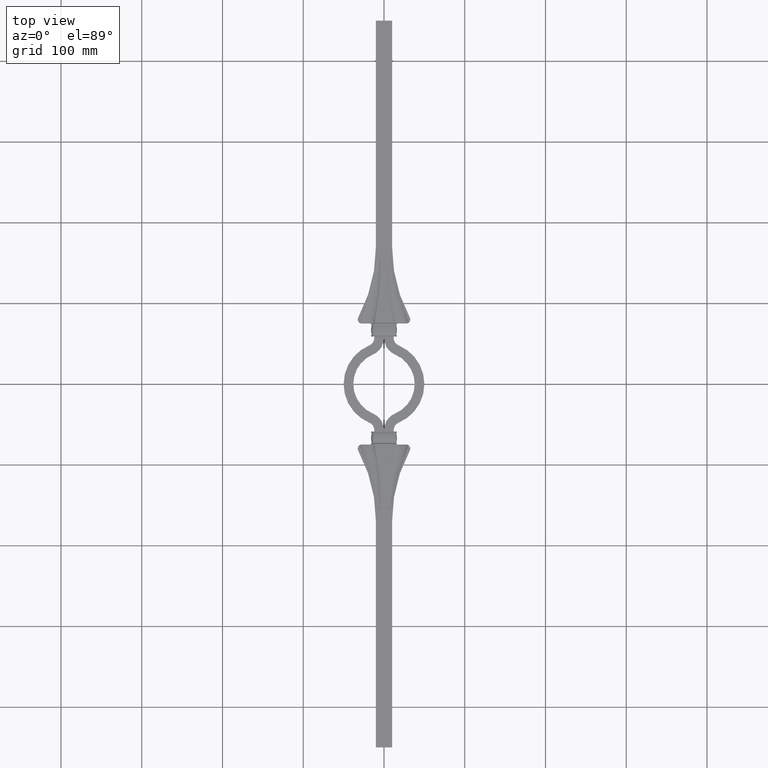
[diagram: clean part render]
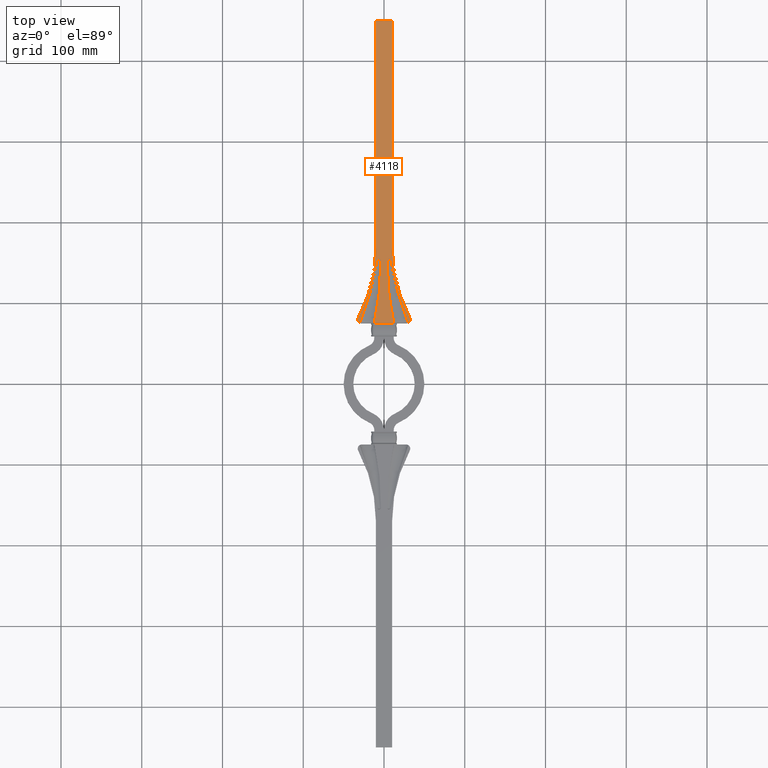
[diagram: same view with one face highlighted and labeled with its STEP entity id]
A machine part, top view. The second image highlights one B-rep face of the part: STEP entity #4118.
In plain terms, the highlighted planar face has unit normal (-0, 0, -1).
Its self-contained STEP definition (entity closure, byte-faithful):
#44 = B_SPLINE_CURVE_WITH_KNOTS ( 'NONE', 3,
 ( #5200, #12776, #3306, #7011, #12444, #16330, #6766, #1505, #6925, #10725, #8742, #21994, #21911, #14662, #20017, #1340, #10642, #3386, #8987, #5121, #18285, #20101, #20178, #22077, #10561, #12689, #1173, #16404, #8915, #8830, #1423, #6850, #23805, #4959, #10891, #10805, #16564 ),
 .UNSPECIFIED., .F., .F.,
 ( 4, 1, 1, 2, 2, 1, 1, 2, 2, 1, 1, 2, 2, 1, 2, 2, 2, 2, 1, 1, 2, 2, 4 ),
 ( 0.000000000000000000, 0.1250000000000149880, 0.1562500000000190681, 0.1640625000000205669, 0.1718750000000220657, 0.1875000000000266731, 0.2187500000000359157, 0.2343750000000405509, 0.2500000000000451306, 0.3125000000000657252, 0.3437500000000754397, 0.3593750000000764944, 0.3750000000000776046, 0.4375000000000899836, 0.4687500000000962008, 0.5000000000001023626, 0.5625000000001127987, 0.6250000000001231237, 0.6875000000001335598, 0.7187500000001230127, 0.7343750000001177947, 0.7500000000001125766, 1.000000000000000000 ),
 .UNSPECIFIED. ) ;
#60 = AXIS2_PLACEMENT_3D ( 'NONE', #14789, #22440, #11094 ) ;
#222 = CARTESIAN_POINT ( 'NONE',  ( 6.704073158307038760, 155.0000000000000000, 5.000000000000000000 ) ) ;
#261 = B_SPLINE_CURVE_WITH_KNOTS ( 'NONE', 3,
 ( #12337, #16385, #14391, #2962, #984, #3201, #18019, #10615, #21726, #16058, #2876, #17849, #16307, #8479 ),
 .UNSPECIFIED., .F., .F.,
 ( 4, 2, 2, 2, 2, 2, 4 ),
 ( 0.000000000000000000, 0.009934312361116222692, 0.01986862472223244538, 0.03973724944446484914, 0.04967156180558107009, 0.05960587416669729105, 0.07947449888892964276 ),
 .UNSPECIFIED. ) ;
#278 = VERTEX_POINT ( 'NONE', #22323 ) ;
#352 = VERTEX_POINT ( 'NONE', #19267 ) ;
#451 = CARTESIAN_POINT ( 'NONE',  ( -4.954640374060897301, 154.9823200777343288, 5.000000000000000000 ) ) ;
#544 = EDGE_CURVE ( 'NONE', #17529, #352, #261, .T. ) ;
#704 = CARTESIAN_POINT ( 'NONE',  ( -3.950210554127115081, 154.4160855845805997, 5.000000000000000000 ) ) ;
#722 = DIRECTION ( 'NONE',  ( -1.000000000000000000, 0.000000000000000000, 0.000000000000000000 ) ) ;
#859 = CARTESIAN_POINT ( 'NONE',  ( 8.369848107284010297, 153.9566044168722101, 5.000000000001072920 ) ) ;
#984 = CARTESIAN_POINT ( 'NONE',  ( 8.866194271365552382, 91.25759851527263322, 5.000000000000000000 ) ) ;
#1091 = CARTESIAN_POINT ( 'NONE',  ( -7.489098946803931511, 154.9483752531168079, 4.999999999999999112 ) ) ;
#1108 = EDGE_CURVE ( 'NONE', #3336, #16348, #13888, .T. ) ;
#1173 = CARTESIAN_POINT ( 'NONE',  ( 7.945722487624616193, 154.7506032434060614, 5.000000000000000000 ) ) ;
#1190 = CARTESIAN_POINT ( 'NONE',  ( 29.90578352800346451, 75.61682699219078074, 5.000000000000000000 ) ) ;
#1268 = VECTOR ( 'NONE', #8142, 1000.000000000000000 ) ;
#1340 = CARTESIAN_POINT ( 'NONE',  ( 7.457000456572635549, 154.9543196795644349, 4.999999999999999112 ) ) ;
#1423 = CARTESIAN_POINT ( 'NONE',  ( 8.137524626313465959, 154.5441998252148608, 4.999999999999999112 ) ) ;
#1444 = VECTOR ( 'NONE', #4790, 1000.000000000000000 ) ;
#1489 = CARTESIAN_POINT ( 'NONE',  ( 4.855366039987758953, 154.9724817919294821, 5.000000000000000000 ) ) ;
#1505 = CARTESIAN_POINT ( 'NONE',  ( 7.097308017255719470, 154.9925326577647411, 5.000000000000000888 ) ) ;
#1573 = CARTESIAN_POINT ( 'NONE',  ( 4.933276762438108420, 154.9804403963294988, 4.999999999999999112 ) ) ;
#1654 = CARTESIAN_POINT ( 'NONE',  ( 3.849387639408194062, 153.9453619701153286, 5.000000000000000000 ) ) ;
#1747 = CARTESIAN_POINT ( 'NONE',  ( -7.158215138077637540, 154.9894308716734486, 5.000000000000000000 ) ) ;
#1772 = CARTESIAN_POINT ( 'NONE',  ( -10.65418433901768758, 81.48515730548123770, 4.999999999999999112 ) ) ;
#1881 = CARTESIAN_POINT ( 'NONE',  ( 10.00000000000003730, 169.9999999999999716, 5.000000000000000000 ) ) ;
#1913 = EDGE_CURVE ( 'NONE', #4162, #9685, #8938, .T. ) ;
#1929 = CARTESIAN_POINT ( 'NONE',  ( -4.647065514988586443, 127.4185468190704711, 4.999999999999998224 ) ) ;
#1982 = CARTESIAN_POINT ( 'NONE',  ( -16.17235635153362949, 117.4835181931385932, 5.000000000000000000 ) ) ;
#2066 = CARTESIAN_POINT ( 'NONE',  ( -25.16593234182545302, 88.32623465581102096, 5.000000000000001776 ) ) ;
#2308 = CIRCLE ( 'NONE', #19610, 186.2500000000003126 ) ;
#2313 = EDGE_CURVE ( 'NONE', #5469, #19061, #3419, .T. ) ;
#2454 = CARTESIAN_POINT ( 'NONE',  ( -4.817166454813649246, 154.9682276090290998, 4.999999999999999112 ) ) ;
#2525 = ORIENTED_EDGE ( 'NONE', *, *, #5213, .F. ) ;
#2722 = CARTESIAN_POINT ( 'NONE',  ( 9.999999999999998224, 450.0000000000000000, 5.000000000000000000 ) ) ;
#2758 = CARTESIAN_POINT ( 'NONE',  ( 20.87496705193597180, 101.1957691935674291, 5.000000000000000000 ) ) ;
#2836 = CARTESIAN_POINT ( 'NONE',  ( 28.66460864057637181, 78.77300451352211041, 5.000000000000000888 ) ) ;
#2876 = CARTESIAN_POINT ( 'NONE',  ( 4.474168269533989495, 130.7263189135368293, 5.000000000000000888 ) ) ;
#2962 = CARTESIAN_POINT ( 'NONE',  ( 9.435256655440054985, 87.99521046313290640, 4.999999999999998224 ) ) ;
#2983 = CARTESIAN_POINT ( 'NONE',  ( -8.369846276095589843, 153.9566048082628242, 5.000000000000015987 ) ) ;
#3201 = CARTESIAN_POINT ( 'NONE',  ( 7.282036358220088879, 101.0645038266207365, 4.999999999999999112 ) ) ;
#3255 = VERTEX_POINT ( 'NONE', #13015 ) ;
#3288 = CARTESIAN_POINT ( 'NONE',  ( 4.016879431814632362, 154.5463229098289162, 5.000000000000000000 ) ) ;
#3306 = CARTESIAN_POINT ( 'NONE',  ( 6.938084917852323841, 154.9985156875119685, 5.000000000000000888 ) ) ;
#3336 = VERTEX_POINT ( 'NONE', #13624 ) ;
#3366 = CARTESIAN_POINT ( 'NONE',  ( 4.615485542775187966, 154.9305361709761542, 5.000000000000000000 ) ) ;
#3386 = CARTESIAN_POINT ( 'NONE',  ( 7.509167489440863541, 154.9436147647252824, 5.000000000000001776 ) ) ;
#3419 = B_SPLINE_CURVE_WITH_KNOTS ( 'NONE', 3,
 ( #20819, #13084, #22704, #2066, #7569, #9299, #13162, #1982, #11357, #7731, #20732, #18689, #7412, #11439 ),
 .UNSPECIFIED., .F., .F.,
 ( 4, 2, 2, 2, 2, 2, 4 ),
 ( 0.0006630706660943519633, 0.01083704948622537211, 0.02101102830635639268, 0.04135898594661847200, 0.05153296476674949778, 0.06170694358688046804, 0.08205490122714240164 ),
 .UNSPECIFIED. ) ;
#3451 = CARTESIAN_POINT ( 'NONE',  ( 5.086463813540904155, 154.9938781205850660, 4.999999999999999112 ) ) ;
#3524 = CARTESIAN_POINT ( 'NONE',  ( 4.338980454192877367, 154.8292424760706467, 5.000000000000000000 ) ) ;
#3611 = LINE ( 'NONE', #7914, #1268 ) ;
#3616 = DIRECTION ( 'NONE',  ( 0.000000000000000000, 0.000000000000000000, 1.000000000000000000 ) ) ;
#3799 = CARTESIAN_POINT ( 'NONE',  ( -5.372424261954931168, 117.5107942955538931, 5.000000000000001776 ) ) ;
#4118 = ADVANCED_FACE ( 'NONE', ( #20307 ), #17439, .F. ) ;
#4162 = VERTEX_POINT ( 'NONE', #5876 ) ;
#4189 = CARTESIAN_POINT ( 'NONE',  ( -27.50000000000000000, 80.00000000000000000, 5.000000000000000000 ) ) ;
#4345 = CARTESIAN_POINT ( 'NONE',  ( -4.736075384499796925, 154.9552602184182035, 5.000000000000000000 ) ) ;
#4424 = CARTESIAN_POINT ( 'NONE',  ( -4.670328043497851134, 154.9426249235760054, 5.000000000000000888 ) ) ;
#4484 = CARTESIAN_POINT ( 'NONE',  ( -9.999999999999998224, 450.0000000000000000, 5.000000000000000000 ) ) ;
#4561 = EDGE_CURVE ( 'NONE', #8319, #20470, #6430, .T. ) ;
#4790 = DIRECTION ( 'NONE',  ( -1.000000000000000000, 1.224646799147353207E-16, 0.000000000000000000 ) ) ;
#4791 = CARTESIAN_POINT ( 'NONE',  ( -8.312822230250709765, 154.1940794741252034, 4.999999999999999112 ) ) ;
#4795 = AXIS2_PLACEMENT_3D ( 'NONE', #4189, #19247, #6142 ) ;
#4957 = CARTESIAN_POINT ( 'NONE',  ( -8.219940837845440385, 154.4060487012313274, 4.999999999999999112 ) ) ;
#4959 = CARTESIAN_POINT ( 'NONE',  ( 8.177099160317723658, 154.4823493684898494, 5.000000000000000000 ) ) ;
#5061 = VERTEX_POINT ( 'NONE', #2722 ) ;
#5117 = CARTESIAN_POINT ( 'NONE',  ( -8.204754837962235925, 154.4341571497420773, 5.000000000000000000 ) ) ;
#5121 = CARTESIAN_POINT ( 'NONE',  ( 7.577369721492475563, 154.9278491904554187, 4.999999999999999112 ) ) ;
#5199 = CARTESIAN_POINT ( 'NONE',  ( -6.704089015590581013, 155.0000000000000000, 5.000000000000000000 ) ) ;
#5200 = CARTESIAN_POINT ( 'NONE',  ( 6.704073158307038760, 155.0000000000000000, 5.000000000000000000 ) ) ;
#5213 = EDGE_CURVE ( 'NONE', #17529, #7072, #14776, .T. ) ;
#5224 = CARTESIAN_POINT ( 'NONE',  ( -6.704089015590581013, 155.0000000000000000, 5.000000000000000000 ) ) ;
#5288 = VERTEX_POINT ( 'NONE', #18596 ) ;
#5340 = CARTESIAN_POINT ( 'NONE',  ( 3.960061134427694807, 154.4353646470972592, 4.999999999999999112 ) ) ;
#5353 = CARTESIAN_POINT ( 'NONE',  ( -6.938287923078263475, 154.9985145645733269, 5.000000000000000000 ) ) ;
#5416 = CARTESIAN_POINT ( 'NONE',  ( -31.91176470588235503, 82.35294117647059409, 5.000000000000000000 ) ) ;
#5423 = CARTESIAN_POINT ( 'NONE',  ( 4.939930174933761187, 154.9810436870728836, 5.000000000000000888 ) ) ;
#5469 = VERTEX_POINT ( 'NONE', #11391 ) ;
#5514 = CARTESIAN_POINT ( 'NONE',  ( -7.072893912736047284, 154.9936636895080255, 5.000000000000000000 ) ) ;
#5600 = LINE ( 'NONE', #15522, #20042 ) ;
#5616 = CARTESIAN_POINT ( 'NONE',  ( -3.850103109401592505, 153.8959823035247325, 5.000000000007732481 ) ) ;
#5876 = CARTESIAN_POINT ( 'NONE',  ( -3.850103109401592505, 153.8959823035247325, 5.000000000007732481 ) ) ;
#6142 = DIRECTION ( 'NONE',  ( 1.000000000000000000, 0.000000000000000000, 0.000000000000000000 ) ) ;
#6146 = EDGE_CURVE ( 'NONE', #278, #4162, #12115, .T. ) ;
#6224 = CARTESIAN_POINT ( 'NONE',  ( -5.524884413910358560, 155.0000000000000000, 5.000000000000000000 ) ) ;
#6225 = ORIENTED_EDGE ( 'NONE', *, *, #21342, .T. ) ;
#6302 = CARTESIAN_POINT ( 'NONE',  ( -4.608119561782899609, 154.9293363865696165, 4.999999999999999112 ) ) ;
#6430 = LINE ( 'NONE', #8662, #1444 ) ;
#6546 = CARTESIAN_POINT ( 'NONE',  ( -4.534892171483874357, 154.9098943820331726, 4.999999999999999112 ) ) ;
#6607 = ORIENTED_EDGE ( 'NONE', *, *, #6146, .T. ) ;
#6612 = CARTESIAN_POINT ( 'NONE',  ( 9.672024829248400124, 147.3004954520926049, 5.000000000000000888 ) ) ;
#6713 = CARTESIAN_POINT ( 'NONE',  ( -3.848712076518018055, 153.9947300474511280, 5.000000000000000000 ) ) ;
#6761 = CARTESIAN_POINT ( 'NONE',  ( -7.425242568085105077, 154.9605887789904273, 4.999999999999998224 ) ) ;
#6766 = CARTESIAN_POINT ( 'NONE',  ( 7.078893240523867370, 154.9933938590223192, 4.999999999999999112 ) ) ;
#6846 = CARTESIAN_POINT ( 'NONE',  ( -7.611289036940938502, 154.9177036749518379, 4.999999999999998224 ) ) ;
#6850 = CARTESIAN_POINT ( 'NONE',  ( 8.157103106869000086, 154.5143419207929867, 5.000000000000000888 ) ) ;
#6924 = CARTESIAN_POINT ( 'NONE',  ( -8.350559475308585888, 154.0555712443146206, 5.000000000000000000 ) ) ;
#6925 = CARTESIAN_POINT ( 'NONE',  ( 7.133621479544720145, 154.9906843207299403, 5.000000000000001776 ) ) ;
#7009 = CARTESIAN_POINT ( 'NONE',  ( -7.576437800765132735, 154.9272596164437630, 5.000000000000000000 ) ) ;
#7011 = CARTESIAN_POINT ( 'NONE',  ( 7.040710738677578462, 154.9950089992585731, 5.000000000000000000 ) ) ;
#7070 = CARTESIAN_POINT ( 'NONE',  ( 4.654509030609440323, 154.9394402328783826, 4.999999999999999112 ) ) ;
#7072 = VERTEX_POINT ( 'NONE', #16376 ) ;
#7231 = CARTESIAN_POINT ( 'NONE',  ( 4.701792468876384135, 154.9495630242741697, 5.000000000000000888 ) ) ;
#7313 = VERTEX_POINT ( 'NONE', #1881 ) ;
#7330 = CARTESIAN_POINT ( 'NONE',  ( -7.214574045493680643, 154.9852823313168813, 5.000000000000000888 ) ) ;
#7400 = CARTESIAN_POINT ( 'NONE',  ( 4.373972640302242532, 154.8467176374576582, 5.000000000000000000 ) ) ;
#7412 = CARTESIAN_POINT ( 'NONE',  ( -9.672069947707761628, 147.3002648453992265, 5.000000000000004441 ) ) ;
#7413 = CARTESIAN_POINT ( 'NONE',  ( -7.040899818233316232, 154.9950052233777456, 4.999999999999999112 ) ) ;
#7485 = EDGE_CURVE ( 'NONE', #3255, #3336, #10225, .T. ) ;
#7569 = CARTESIAN_POINT ( 'NONE',  ( -24.05351156489238917, 91.52952749294759371, 5.000000000000000888 ) ) ;
#7710 = LINE ( 'NONE', #4484, #19789 ) ;
#7731 = CARTESIAN_POINT ( 'NONE',  ( -13.77831717949568890, 127.3717743822335962, 5.000000000000000000 ) ) ;
#7914 = CARTESIAN_POINT ( 'NONE',  ( -27.50000000000000000, 75.00000000000000000, 5.000000000000000000 ) ) ;
#7917 = DIRECTION ( 'NONE',  ( -1.000000000000000000, -1.224646799147353207E-16, 0.000000000000000000 ) ) ;
#7956 = DIRECTION ( 'NONE',  ( 1.000000000000000000, 0.000000000000000000, 0.000000000000000000 ) ) ;
#8142 = DIRECTION ( 'NONE',  ( 1.000000000000000000, 0.000000000000000000, 0.000000000000000000 ) ) ;
#8319 = VERTEX_POINT ( 'NONE', #222 ) ;
#8339 = CARTESIAN_POINT ( 'NONE',  ( 21.90836777486454423, 97.96535690691437992, 4.999999999999998224 ) ) ;
#8451 = CARTESIAN_POINT ( 'NONE',  ( -4.456750589231579518, 154.8821767864181993, 5.000000000000000888 ) ) ;
#8479 = CARTESIAN_POINT ( 'NONE',  ( 3.850100905047181499, 153.8959823676001974, 5.000000000000000888 ) ) ;
#8530 = ORIENTED_EDGE ( 'NONE', *, *, #16482, .T. ) ;
#8581 = CARTESIAN_POINT ( 'NONE',  ( -7.689420039582453903, 154.8927600434847989, 4.999999999999999112 ) ) ;
#8662 = CARTESIAN_POINT ( 'NONE',  ( -196.2500000000003695, 155.0000000000000284, 5.000000000000000000 ) ) ;
#8742 = CARTESIAN_POINT ( 'NONE',  ( 7.213191979804066456, 154.9851121891194623, 4.999999999999999112 ) ) ;
#8765 = CARTESIAN_POINT ( 'NONE',  ( -11.99556631910429161, 75.00000000000000000, 5.000000000000000000 ) ) ;
#8805 = CIRCLE ( 'NONE', #4795, 5.000000000000007994 ) ;
#8830 = CARTESIAN_POINT ( 'NONE',  ( 8.089659345965134918, 154.6100510210173979, 5.000000000000002665 ) ) ;
#8866 = CARTESIAN_POINT ( 'NONE',  ( -9.999999999999998224, 450.0000000000000000, 5.000000000000000000 ) ) ;
#8915 = CARTESIAN_POINT ( 'NONE',  ( 8.044891118720236989, 154.6599510496793641, 5.000000000000002665 ) ) ;
#8938 = B_SPLINE_CURVE_WITH_KNOTS ( 'NONE', 3,
 ( #5616, #16813, #9167, #9325, #1929, #15078, #3799, #20524, #22416, #24315, #13031, #1772, #14919, #18719 ),
 .UNSPECIFIED., .F., .F.,
 ( 4, 2, 2, 2, 2, 2, 4 ),
 ( 0.001104118336523353524, 0.02097253915627313170, 0.03090674956614806318, 0.04084095997602300160, 0.06070938079577280905, 0.07064359120564771277, 0.08057780161552259568 ),
 .UNSPECIFIED. ) ;
#8972 = CARTESIAN_POINT ( 'NONE',  ( 3.867880131952344147, 154.1368854532116188, 5.000000000000000888 ) ) ;
#8979 = ORIENTED_EDGE ( 'NONE', *, *, #18083, .T. ) ;
#8987 = CARTESIAN_POINT ( 'NONE',  ( 7.517284030249600235, 154.9418360449565739, 5.000000000000000888 ) ) ;
#9167 = CARTESIAN_POINT ( 'NONE',  ( -4.066255454649413181, 140.6514932256762336, 5.000000000000000888 ) ) ;
#9207 = CARTESIAN_POINT ( 'NONE',  ( 4.923330507334945594, 154.9795228441533084, 4.999999999999999112 ) ) ;
#9221 = CARTESIAN_POINT ( 'NONE',  ( -7.282159346196745098, 154.9788182286720826, 5.000000000000000888 ) ) ;
#9264 = VERTEX_POINT ( 'NONE', #17080 ) ;
#9299 = CARTESIAN_POINT ( 'NONE',  ( -20.83678052712910400, 101.1802508699184528, 5.000000000000001776 ) ) ;
#9325 = CARTESIAN_POINT ( 'NONE',  ( -4.474201774496942008, 130.7256328451458955, 5.000000000000000000 ) ) ;
#9426 = EDGE_CURVE ( 'NONE', #7313, #5061, #16283, .T. ) ;
#9640 = EDGE_CURVE ( 'NONE', #5061, #5288, #7710, .T. ) ;
#9685 = VERTEX_POINT ( 'NONE', #8765 ) ;
#9842 = CARTESIAN_POINT ( 'NONE',  ( -4.977114643288827800, 154.9841644563494754, 5.000000000000000888 ) ) ;
#9928 = CARTESIAN_POINT ( 'NONE',  ( -5.009838797826637879, 154.9866016173509990, 5.000000000000000888 ) ) ;
#10174 = CARTESIAN_POINT ( 'NONE',  ( -4.394963218381486847, 154.8564157422315191, 4.999999999999999112 ) ) ;
#10225 = B_SPLINE_CURVE_WITH_KNOTS ( 'NONE', 3,
 ( #859, #6612, #23739, #14350, #12460, #17894, #10321, #16102, #12215, #2758, #8339, #19804, #14111, #10240, #2836, #1190 ),
 .UNSPECIFIED., .F., .F.,
 ( 4, 2, 2, 2, 2, 2, 2, 4 ),
 ( 0.001063238149677896149, 0.02141010717645206937, 0.03158354168983910915, 0.04175697620322620096, 0.05193041071661328584, 0.06210384523000037765, 0.07227727974338746253, 0.08245071425677455434 ),
 .UNSPECIFIED. ) ;
#10240 = CARTESIAN_POINT ( 'NONE',  ( 27.47184621777901015, 81.94799723079840703, 5.000000000000001776 ) ) ;
#10273 = ORIENTED_EDGE ( 'NONE', *, *, #12171, .F. ) ;
#10321 = CARTESIAN_POINT ( 'NONE',  ( 16.17173934107077216, 117.4858898267804221, 5.000000000000000000 ) ) ;
#10561 = CARTESIAN_POINT ( 'NONE',  ( 7.831067647579670776, 154.8267907529932756, 5.000000000000000888 ) ) ;
#10612 = VERTEX_POINT ( 'NONE', #5416 ) ;
#10615 = CARTESIAN_POINT ( 'NONE',  ( 5.372386883976738581, 117.5112101177227260, 5.000000000000000000 ) ) ;
#10641 = CARTESIAN_POINT ( 'NONE',  ( -8.132525867770386441, 154.5523416721605372, 5.000000000000000000 ) ) ;
#10642 = CARTESIAN_POINT ( 'NONE',  ( 7.488510143176418943, 154.9479807662989401, 4.999999999999998224 ) ) ;
#10723 = CARTESIAN_POINT ( 'NONE',  ( -8.047682912410662581, 154.6571525177679973, 4.999999999999999112 ) ) ;
#10725 = CARTESIAN_POINT ( 'NONE',  ( 7.179975064563890896, 154.9877161332719027, 5.000000000000001776 ) ) ;
#10744 = EDGE_CURVE ( 'NONE', #9264, #7072, #5600, .T. ) ;
#10803 = CARTESIAN_POINT ( 'NONE',  ( -7.831338401202090793, 154.8256620337895981, 4.999999999999996447 ) ) ;
#10805 = CARTESIAN_POINT ( 'NONE',  ( 8.331045514131830032, 154.1555962923812331, 5.000000000000000000 ) ) ;
#10842 = DIRECTION ( 'NONE',  ( -1.000000000000000000, 0.000000000000000000, 0.000000000000000000 ) ) ;
#10848 = ORIENTED_EDGE ( 'NONE', *, *, #1913, .T. ) ;
#10875 = CARTESIAN_POINT ( 'NONE',  ( 4.646987216358602346, 154.9377906480003730, 5.000000000000000000 ) ) ;
#10891 = CARTESIAN_POINT ( 'NONE',  ( 8.268579576320167490, 154.3278125196068800, 5.000000000000000888 ) ) ;
#10954 = ORIENTED_EDGE ( 'NONE', *, *, #1108, .T. ) ;
#10959 = CARTESIAN_POINT ( 'NONE',  ( 4.900359624242990542, 154.9772935766484068, 5.000000000000001776 ) ) ;
#11015 = VECTOR ( 'NONE', #22032, 1000.000000000000000 ) ;
#11094 = DIRECTION ( 'NONE',  ( 1.000000000000000000, 0.000000000000000000, 0.000000000000000000 ) ) ;
#11112 = CARTESIAN_POINT ( 'NONE',  ( 4.944432351656110392, 154.9814430530235256, 4.999999999999999112 ) ) ;
#11183 = EDGE_CURVE ( 'NONE', #352, #20470, #18125, .T. ) ;
#11357 = CARTESIAN_POINT ( 'NONE',  ( -15.33948263790184008, 120.7713928348293138, 5.000000000000000888 ) ) ;
#11391 = CARTESIAN_POINT ( 'NONE',  ( -29.90578352800346096, 75.61682699219076653, 5.000000000000000888 ) ) ;
#11439 = CARTESIAN_POINT ( 'NONE',  ( -8.369846276095589843, 153.9566048082628242, 5.000000000000015987 ) ) ;
#11440 = VERTEX_POINT ( 'NONE', #5224 ) ;
#11531 = DIRECTION ( 'NONE',  ( -1.000000000000000000, 0.000000000000000000, 0.000000000000000000 ) ) ;
#11998 = CARTESIAN_POINT ( 'NONE',  ( -196.2500000000003695, 170.0000000000000000, 5.000000000000000000 ) ) ;
#12115 = B_SPLINE_CURVE_WITH_KNOTS ( 'NONE', 3,
 ( #6224, #21296, #17343, #15696, #9928, #9842, #23088, #451, #13711, #23015, #13633, #2454, #4345, #17493, #19404, #4424, #17581, #6302, #6546, #8451, #23336, #21538, #10174, #23676, #23598, #15772, #19891, #12312, #23505, #704, #12233, #16118, #21619, #17997, #13869, #6713, #21787 ),
 .UNSPECIFIED., .F., .F.,
 ( 4, 1, 1, 1, 1, 1, 2, 2, 1, 1, 1, 2, 2, 1, 1, 2, 2, 1, 1, 2, 2, 1, 2, 2, 4 ),
 ( 0.000000000000000000, 0.1249999999999363010, 0.1874999999999039102, 0.2187499999998888389, 0.2343749999998797073, 0.2421874999998751277, 0.2460937499998736289, 0.2499999999998721023, 0.3124999999998584466, 0.3437499999998541722, 0.3593749999998559486, 0.3671874999998568367, 0.3749999999998577249, 0.4374999999998696598, 0.4687499999998811506, 0.4843749999998936406, 0.4999999999999061862, 0.6249999999999104050, 0.6874999999999255040, 0.7187499999999331646, 0.7499999999999407141, 0.8124999999999559241, 0.8437499999999632516, 0.8749999999999706901, 1.000000000000000000 ),
 .UNSPECIFIED. ) ;
#12171 = EDGE_CURVE ( 'NONE', #278, #11440, #14998, .T. ) ;
#12215 = CARTESIAN_POINT ( 'NONE',  ( 18.89638322145837890, 107.6835420494722513, 5.000000000000001776 ) ) ;
#12233 = CARTESIAN_POINT ( 'NONE',  ( -3.922481314492257898, 154.3507578352017049, 5.000000000000000000 ) ) ;
#12312 = CARTESIAN_POINT ( 'NONE',  ( -3.994846812575558737, 154.5011420639835080, 4.999999999999998224 ) ) ;
#12337 = CARTESIAN_POINT ( 'NONE',  ( 11.99556631910429338, 74.99999999999998579, 4.999999999999999112 ) ) ;
#12361 = CARTESIAN_POINT ( 'NONE',  ( -7.538858558781066144, 154.9368045953234514, 5.000000000000000000 ) ) ;
#12444 = CARTESIAN_POINT ( 'NONE',  ( 7.063657707383756978, 154.9940581115708937, 5.000000000000000000 ) ) ;
#12460 = CARTESIAN_POINT ( 'NONE',  ( 13.77806467132802837, 127.3729171794538360, 5.000000000000000888 ) ) ;
#12519 = CARTESIAN_POINT ( 'NONE',  ( -7.750923387386090546, 154.8668430428227509, 4.999999999999999112 ) ) ;
#12590 = CARTESIAN_POINT ( 'NONE',  ( -196.2500000000003695, 75.00000000000000000, 5.000000000000000000 ) ) ;
#12596 = ORIENTED_EDGE ( 'NONE', *, *, #10744, .T. ) ;
#12605 = CARTESIAN_POINT ( 'NONE',  ( -7.871353795391170749, 154.8018180168116942, 5.000000000000000888 ) ) ;
#12670 = CARTESIAN_POINT ( 'NONE',  ( 4.306078688689518152, 154.8116730214752863, 5.000000000000000888 ) ) ;
#12689 = CARTESIAN_POINT ( 'NONE',  ( 7.870881565983240513, 154.8031225917746099, 5.000000000000000888 ) ) ;
#12757 = CARTESIAN_POINT ( 'NONE',  ( 4.769171599191521338, 154.9614452236559998, 4.999999999999999112 ) ) ;
#12776 = CARTESIAN_POINT ( 'NONE',  ( 6.816542032269166995, 155.0000000000001705, 4.999999999999999112 ) ) ;
#12840 = CARTESIAN_POINT ( 'NONE',  ( 3.852224591100757767, 154.0183417871604377, 4.999999999999999112 ) ) ;
#12900 = ORIENTED_EDGE ( 'NONE', *, *, #7485, .T. ) ;
#12918 = CARTESIAN_POINT ( 'NONE',  ( 3.850100905047181499, 153.8959823676001974, 5.000000000000000888 ) ) ;
#13007 = CARTESIAN_POINT ( 'NONE',  ( -7.097544625503466875, 154.9925235955167295, 5.000000000000000000 ) ) ;
#13015 = CARTESIAN_POINT ( 'NONE',  ( 8.369848107284010297, 153.9566044168722101, 5.000000000001072920 ) ) ;
#13031 = CARTESIAN_POINT ( 'NONE',  ( -9.435335347233456460, 87.99476970336580450, 5.000000000000000000 ) ) ;
#13084 = CARTESIAN_POINT ( 'NONE',  ( -28.66465569825735926, 78.77288485077676228, 4.999999999999997335 ) ) ;
#13162 = CARTESIAN_POINT ( 'NONE',  ( -18.84312687688530019, 107.6664400832484745, 5.000000000000000000 ) ) ;
#13422 = CARTESIAN_POINT ( 'NONE',  ( -196.2500000000003695, 154.9999999999999716, 5.000000000000000000 ) ) ;
#13608 = AXIS2_PLACEMENT_3D ( 'NONE', #20588, #3616, #11531 ) ;
#13624 = CARTESIAN_POINT ( 'NONE',  ( 29.90578352800346451, 75.61682699219078074, 5.000000000000000000 ) ) ;
#13633 = CARTESIAN_POINT ( 'NONE',  ( -4.892755534378160576, 154.9768825606711289, 5.000000000000000000 ) ) ;
#13711 = CARTESIAN_POINT ( 'NONE',  ( -4.950226401180484181, 154.9819418975788494, 4.999999999999999112 ) ) ;
#13869 = CARTESIAN_POINT ( 'NONE',  ( -3.857636780781696473, 154.0905712758262496, 5.000000000000000000 ) ) ;
#13888 = CIRCLE ( 'NONE', #13608, 5.000000000000007994 ) ;
#13904 = ORIENTED_EDGE ( 'NONE', *, *, #11183, .T. ) ;
#13908 = VECTOR ( 'NONE', #15442, 1000.000000000000000 ) ;
#14111 = CARTESIAN_POINT ( 'NONE',  ( 25.16573552833383332, 88.32679013036462834, 5.000000000000002665 ) ) ;
#14141 = ORIENTED_EDGE ( 'NONE', *, *, #21244, .T. ) ;
#14350 = CARTESIAN_POINT ( 'NONE',  ( 13.04663174469290254, 130.6846083233393756, 5.000000000000047073 ) ) ;
#14391 = CARTESIAN_POINT ( 'NONE',  ( 10.65409518821519086, 81.48561296002652909, 4.999999999999999112 ) ) ;
#14453 = DIRECTION ( 'NONE',  ( -0.000000000000000000, -0.000000000000000000, -1.000000000000000000 ) ) ;
#14493 = CARTESIAN_POINT ( 'NONE',  ( -7.552899972035048037, 154.9333782027095197, 5.000000000000000000 ) ) ;
#14662 = CARTESIAN_POINT ( 'NONE',  ( 7.307366801111530918, 154.9765360763337867, 4.999999999999999112 ) ) ;
#14726 = CARTESIAN_POINT ( 'NONE',  ( 3.860846577633067600, 154.0896860594281748, 5.000000000000000000 ) ) ;
#14776 = LINE ( 'NONE', #12590, #24133 ) ;
#14789 = CARTESIAN_POINT ( 'NONE',  ( 196.2500000000003695, 170.0000000000000000, 5.000000000000000000 ) ) ;
#14805 = CARTESIAN_POINT ( 'NONE',  ( 4.233135279549796515, 154.7668836215721058, 4.999999999999999112 ) ) ;
#14879 = CARTESIAN_POINT ( 'NONE',  ( 4.361279476627033524, 154.8405941119107183, 5.000000000000001776 ) ) ;
#14892 = CARTESIAN_POINT ( 'NONE',  ( -6.816671816223710323, 154.9999999999999716, 4.999999999999999112 ) ) ;
#14919 = CARTESIAN_POINT ( 'NONE',  ( -11.30261090956467385, 78.23813512742033538, 5.000000000000001776 ) ) ;
#14933 = ORIENTED_EDGE ( 'NONE', *, *, #544, .T. ) ;
#14998 = LINE ( 'NONE', #13422, #18537 ) ;
#15078 = CARTESIAN_POINT ( 'NONE',  ( -5.095152143719272608, 120.8110165117965096, 5.000000000000000000 ) ) ;
#15199 = CARTESIAN_POINT ( 'NONE',  ( 31.91176470588233371, 82.35294117647066514, 5.000000000000000000 ) ) ;
#15400 = ORIENTED_EDGE ( 'NONE', *, *, #2313, .T. ) ;
#15442 = DIRECTION ( 'NONE',  ( -1.362997016838919825E-16, 1.000000000000000000, -0.000000000000000000 ) ) ;
#15522 = CARTESIAN_POINT ( 'NONE',  ( -27.50000000000000000, 75.00000000000000000, 5.000000000000000000 ) ) ;
#15696 = CARTESIAN_POINT ( 'NONE',  ( -5.079670333402146909, 154.9909716991469111, 5.000000000000000888 ) ) ;
#15772 = CARTESIAN_POINT ( 'NONE',  ( -4.061050425222535232, 154.6026204758212828, 5.000000000000000000 ) ) ;
#15842 = DIRECTION ( 'NONE',  ( -1.000000000000000000, -0.000000000000000000, -0.000000000000000000 ) ) ;
#15874 = DIRECTION ( 'NONE',  ( -0.000000000000000000, 0.000000000000000000, -1.000000000000000000 ) ) ;
#16058 = CARTESIAN_POINT ( 'NONE',  ( 4.647021765255375136, 127.4192935923789349, 5.000000000000000000 ) ) ;
#16102 = CARTESIAN_POINT ( 'NONE',  ( 17.95218777891637529, 110.9412036713316354, 5.000000000000000000 ) ) ;
#16118 = CARTESIAN_POINT ( 'NONE',  ( -3.900880505724443115, 154.2806662280919454, 5.000000000000000000 ) ) ;
#16283 = LINE ( 'NONE', #22921, #13908 ) ;
#16300 = B_SPLINE_CURVE_WITH_KNOTS ( 'NONE', 3,
 ( #2983, #6924, #4791, #16328, #4957, #5117, #18284, #18118, #23725, #10641, #20098, #10723, #17954, #19858, #12605, #10803, #23878, #12519, #8581, #6846, #7009, #14493, #12361, #1091, #6761, #19938, #20016, #9221, #16561, #7330, #1747, #13007, #22471, #5514, #22150, #7413, #5353, #14892, #5199 ),
 .UNSPECIFIED., .F., .F.,
 ( 4, 1, 1, 1, 2, 2, 2, 2, 1, 2, 2, 1, 1, 2, 2, 1, 1, 2, 2, 1, 2, 2, 1, 1, 4 ),
 ( 0.000000000000000000, 0.1250000000001575684, 0.1875000000002546852, 0.2187500000002852163, 0.2343750000002998712, 0.2500000000003145262, 0.3125000000002816636, 0.3750000000002487455, 0.4375000000002158829, 0.4687500000001984524, 0.5000000000001810774, 0.5625000000001643130, 0.5937500000001495470, 0.6093750000001427747, 0.6250000000001358913, 0.6875000000001113554, 0.7187500000001020295, 0.7343750000000994760, 0.7500000000000969225, 0.8125000000000753841, 0.8281250000000706102, 0.8359375000000672795, 0.8437500000000640599, 0.8750000000000510703, 1.000000000000000000 ),
 .UNSPECIFIED. ) ;
#16307 = CARTESIAN_POINT ( 'NONE',  ( 3.941525040750626374, 147.2739525905449796, 5.000000000000002665 ) ) ;
#16328 = CARTESIAN_POINT ( 'NONE',  ( -8.253457608033292203, 154.3382894517257000, 5.000000000000000888 ) ) ;
#16330 = CARTESIAN_POINT ( 'NONE',  ( 7.072717474823195793, 154.9936684795426913, 5.000000000000000888 ) ) ;
#16348 = VERTEX_POINT ( 'NONE', #15199 ) ;
#16376 = CARTESIAN_POINT ( 'NONE',  ( 0.04999999999999449329, 75.00000000000000000, 5.000000000000000000 ) ) ;
#16385 = CARTESIAN_POINT ( 'NONE',  ( 11.30261319388152863, 78.23812445295762075, 5.000000000000000000 ) ) ;
#16400 = ORIENTED_EDGE ( 'NONE', *, *, #16605, .T. ) ;
#16404 = CARTESIAN_POINT ( 'NONE',  ( 7.981874954314365667, 154.7206676626024091, 5.000000000000000000 ) ) ;
#16482 = EDGE_CURVE ( 'NONE', #10612, #5469, #8805, .T. ) ;
#16519 = CARTESIAN_POINT ( 'NONE',  ( -196.2500000000003695, 170.0000000000000000, 5.000000000000000000 ) ) ;
#16561 = CARTESIAN_POINT ( 'NONE',  ( -7.267483668783171424, 154.9802891377497076, 5.000000000000001776 ) ) ;
#16564 = CARTESIAN_POINT ( 'NONE',  ( 8.369848107284010297, 153.9566044168722101, 5.000000000001072920 ) ) ;
#16605 = EDGE_CURVE ( 'NONE', #21151, #10612, #2308, .T. ) ;
#16613 = CARTESIAN_POINT ( 'NONE',  ( 3.932407141022787656, 154.3720571457417066, 4.999999999999999112 ) ) ;
#16695 = CARTESIAN_POINT ( 'NONE',  ( 4.634336586873664565, 154.9349252718569687, 4.999999999999999112 ) ) ;
#16776 = CARTESIAN_POINT ( 'NONE',  ( 4.572374074114356368, 154.9196576789277344, 4.999999999999999112 ) ) ;
#16813 = CARTESIAN_POINT ( 'NONE',  ( -3.941527049321892129, 147.2738070828576440, 4.999999999999998224 ) ) ;
#17080 = CARTESIAN_POINT ( 'NONE',  ( -0.04999999999999449329, 75.00000000000000000, 5.000000000000000000 ) ) ;
#17124 = CARTESIAN_POINT ( 'NONE',  ( -10.00000000000006395, 170.0000000000000284, 5.000000000000000000 ) ) ;
#17343 = CARTESIAN_POINT ( 'NONE',  ( -5.236866310552566794, 154.9976949019099095, 5.000000000000000888 ) ) ;
#17439 = PLANE ( 'NONE',  #18676 ) ;
#17493 = CARTESIAN_POINT ( 'NONE',  ( -4.697303896637444964, 154.9480590363556587, 4.999999999999999112 ) ) ;
#17529 = VERTEX_POINT ( 'NONE', #17852 ) ;
#17568 = ORIENTED_EDGE ( 'NONE', *, *, #18554, .T. ) ;
#17581 = CARTESIAN_POINT ( 'NONE',  ( -4.666164550120009302, 154.9417599226907498, 5.000000000000001776 ) ) ;
#17592 = EDGE_LOOP ( 'NONE', ( #8530, #15400, #8979, #10273, #6607, #10848, #14141, #12596, #2525, #14933, #13904, #19857, #23755, #12900, #10954, #17568, #19067, #18052, #6225, #16400 ) ) ;
#17849 = CARTESIAN_POINT ( 'NONE',  ( 4.066234517338261689, 140.6522610004297178, 5.000000000000000888 ) ) ;
#17852 = CARTESIAN_POINT ( 'NONE',  ( 11.99556631910429338, 74.99999999999998579, 4.999999999999999112 ) ) ;
#17894 = CARTESIAN_POINT ( 'NONE',  ( 15.33893155232052941, 120.7736475543639045, 5.000000000000000888 ) ) ;
#17954 = CARTESIAN_POINT ( 'NONE',  ( -7.982266187986903461, 154.7204992681262183, 4.999999999999999112 ) ) ;
#17997 = CARTESIAN_POINT ( 'NONE',  ( -3.881648285690061151, 154.2067390926261510, 4.999999999999999112 ) ) ;
#18019 = CARTESIAN_POINT ( 'NONE',  ( 6.383646114910948022, 107.6290771002282440, 4.999999999999997335 ) ) ;
#18052 = ORIENTED_EDGE ( 'NONE', *, *, #9640, .T. ) ;
#18083 = EDGE_CURVE ( 'NONE', #19061, #11440, #16300, .T. ) ;
#18118 = CARTESIAN_POINT ( 'NONE',  ( -8.190079004863251910, 154.4603655763502275, 4.999999999999999112 ) ) ;
#18125 = B_SPLINE_CURVE_WITH_KNOTS ( 'NONE', 3,
 ( #12918, #1654, #12840, #14726, #8972, #20245, #20323, #22142, #16613, #22218, #5340, #3288, #22379, #14805, #12670, #3524, #14879, #7400, #18351, #24108, #16776, #3366, #16695, #10875, #7070, #7231, #12757, #1489, #10959, #9207, #1573, #5423, #11112, #3451, #18516, #20402 ),
 .UNSPECIFIED., .F., .F.,
 ( 4, 1, 2, 2, 1, 2, 2, 1, 1, 1, 2, 2, 1, 1, 1, 2, 2, 1, 1, 1, 1, 2, 2, 4 ),
 ( 0.000000000000000000, 0.06249999999998932798, 0.09374999999998397116, 0.1249999999999786005, 0.1874999999999345801, 0.2187499999999128197, 0.2499999999998910871, 0.3749999999997741806, 0.4374999999997286615, 0.4687499999997159494, 0.4843749999997091216, 0.4999999999997022937, 0.5624999999997096767, 0.5937499999997183364, 0.6093749999997276623, 0.6171874999997367661, 0.6249999999997458699, 0.6874999999997738476, 0.7187499999997858380, 0.7343749999997942757, 0.7421874999997996047, 0.7460937499998022693, 0.7499999999998049338, 1.000000000000000000 ),
 .UNSPECIFIED. ) ;
#18284 = CARTESIAN_POINT ( 'NONE',  ( -8.194448244750629939, 154.4526891754494500, 5.000000000000000000 ) ) ;
#18285 = CARTESIAN_POINT ( 'NONE',  ( 7.645866024125104410, 154.9080606686535191, 4.999999999999999112 ) ) ;
#18351 = CARTESIAN_POINT ( 'NONE',  ( 4.424735774836271673, 154.8701481847467960, 5.000000000000000000 ) ) ;
#18516 = CARTESIAN_POINT ( 'NONE',  ( 5.279218533183295925, 155.0000000000000000, 4.999999999999998224 ) ) ;
#18537 = VECTOR ( 'NONE', #7917, 1000.000000000000000 ) ;
#18554 = EDGE_CURVE ( 'NONE', #16348, #7313, #21391, .T. ) ;
#18596 = CARTESIAN_POINT ( 'NONE',  ( -9.999999999999998224, 450.0000000000000000, 5.000000000000000000 ) ) ;
#18676 = AXIS2_PLACEMENT_3D ( 'NONE', #11998, #15874, #722 ) ;
#18689 = CARTESIAN_POINT ( 'NONE',  ( -10.94614546052817516, 140.6380072406970498, 5.000000000000000888 ) ) ;
#18719 = CARTESIAN_POINT ( 'NONE',  ( -11.99556631910429161, 75.00000000000000000, 5.000000000000000000 ) ) ;
#19061 = VERTEX_POINT ( 'NONE', #24062 ) ;
#19067 = ORIENTED_EDGE ( 'NONE', *, *, #9426, .T. ) ;
#19247 = DIRECTION ( 'NONE',  ( 0.000000000000000000, 0.000000000000000000, 1.000000000000000000 ) ) ;
#19267 = CARTESIAN_POINT ( 'NONE',  ( 3.850100905047181499, 153.8959823676001974, 5.000000000000000888 ) ) ;
#19404 = CARTESIAN_POINT ( 'NONE',  ( -4.681067697688136242, 154.9448190683094708, 5.000000000000001776 ) ) ;
#19610 = AXIS2_PLACEMENT_3D ( 'NONE', #16519, #14453, #10842 ) ;
#19789 = VECTOR ( 'NONE', #15842, 1000.000000000000000 ) ;
#19804 = CARTESIAN_POINT ( 'NONE',  ( 24.05310285803236070, 91.53070927640611387, 5.000000000000000888 ) ) ;
#19857 = ORIENTED_EDGE ( 'NONE', *, *, #4561, .F. ) ;
#19858 = CARTESIAN_POINT ( 'NONE',  ( -7.929550128680483034, 154.7640946517943235, 4.999999999999999112 ) ) ;
#19891 = CARTESIAN_POINT ( 'NONE',  ( -4.020455373800357890, 154.5425993006761303, 5.000000000000000000 ) ) ;
#19938 = CARTESIAN_POINT ( 'NONE',  ( -7.343489981973811531, 154.9719131814225648, 5.000000000000000888 ) ) ;
#20016 = CARTESIAN_POINT ( 'NONE',  ( -7.306898842724903531, 154.9761397729462260, 5.000000000000000888 ) ) ;
#20017 = CARTESIAN_POINT ( 'NONE',  ( 7.379812184047300327, 154.9676398535170563, 5.000000000000000000 ) ) ;
#20042 = VECTOR ( 'NONE', #7956, 1000.000000000000000 ) ;
#20098 = CARTESIAN_POINT ( 'NONE',  ( -8.076228130635049851, 154.6249800394071201, 4.999999999999998224 ) ) ;
#20101 = CARTESIAN_POINT ( 'NONE',  ( 7.708952536469403150, 154.8837657022507415, 4.999999999999999112 ) ) ;
#20118 = LINE ( 'NONE', #8866, #11015 ) ;
#20178 = CARTESIAN_POINT ( 'NONE',  ( 7.749808035745998858, 154.8665676258487167, 5.000000000000000000 ) ) ;
#20245 = CARTESIAN_POINT ( 'NONE',  ( 3.871683794444007898, 154.1585814098176002, 5.000000000000000888 ) ) ;
#20307 = FACE_OUTER_BOUND ( 'NONE', #17592, .T. ) ;
#20323 = CARTESIAN_POINT ( 'NONE',  ( 3.887158504766628386, 154.2334561765725596, 5.000000000000000888 ) ) ;
#20402 = CARTESIAN_POINT ( 'NONE',  ( 5.524881609996840304, 155.0000000000000000, 5.000000000000000000 ) ) ;
#20470 = VERTEX_POINT ( 'NONE', #22464 ) ;
#20524 = CARTESIAN_POINT ( 'NONE',  ( -6.383709024410685551, 107.6285634733770848, 5.000000000000000888 ) ) ;
#20588 = CARTESIAN_POINT ( 'NONE',  ( 27.50000000000000000, 80.00000000000000000, 5.000000000000000000 ) ) ;
#20732 = CARTESIAN_POINT ( 'NONE',  ( -13.04686534027730715, 130.6835292798024284, 5.000000000000001776 ) ) ;
#20819 = CARTESIAN_POINT ( 'NONE',  ( -29.90578352800346096, 75.61682699219076653, 5.000000000000000888 ) ) ;
#21151 = VERTEX_POINT ( 'NONE', #17124 ) ;
#21244 = EDGE_CURVE ( 'NONE', #9685, #9264, #3611, .T. ) ;
#21296 = CARTESIAN_POINT ( 'NONE',  ( -5.401662129823284531, 155.0000000000000000, 5.000000000000000000 ) ) ;
#21342 = EDGE_CURVE ( 'NONE', #5288, #21151, #20118, .T. ) ;
#21391 = CIRCLE ( 'NONE', #60, 186.2500000000003126 ) ;
#21538 = CARTESIAN_POINT ( 'NONE',  ( -4.403886038638129108, 154.8603404236260985, 5.000000000000000000 ) ) ;
#21619 = CARTESIAN_POINT ( 'NONE',  ( -3.887841840071918131, 154.2328798549675355, 4.999999999999999112 ) ) ;
#21726 = CARTESIAN_POINT ( 'NONE',  ( 5.095105764862404740, 120.8115988041454614, 5.000000000000000000 ) ) ;
#21787 = CARTESIAN_POINT ( 'NONE',  ( -3.850103109401592505, 153.8959823035247325, 5.000000000007732481 ) ) ;
#21911 = CARTESIAN_POINT ( 'NONE',  ( 7.243504533950921420, 154.9825490013796525, 5.000000000000000000 ) ) ;
#21994 = CARTESIAN_POINT ( 'NONE',  ( 7.234992529180929388, 154.9832922700047391, 4.999999999999998224 ) ) ;
#22032 = DIRECTION ( 'NONE',  ( -1.362997016838919825E-16, -1.000000000000000000, 0.000000000000000000 ) ) ;
#22077 = CARTESIAN_POINT ( 'NONE',  ( 7.767756583600007758, 154.8584057253729895, 5.000000000000000888 ) ) ;
#22142 = CARTESIAN_POINT ( 'NONE',  ( 3.906718705263790170, 154.3051456392301759, 5.000000000000000000 ) ) ;
#22150 = CARTESIAN_POINT ( 'NONE',  ( -7.063838066065339483, 154.9940536163075535, 4.999999999999999112 ) ) ;
#22218 = CARTESIAN_POINT ( 'NONE',  ( 3.950894594920305813, 154.4156030487170028, 5.000000000000000000 ) ) ;
#22323 = CARTESIAN_POINT ( 'NONE',  ( -5.524884413910358560, 155.0000000000000000, 5.000000000000000000 ) ) ;
#22379 = CARTESIAN_POINT ( 'NONE',  ( 4.102557969409805771, 154.6621287983770685, 5.000000000000000000 ) ) ;
#22407 = EDGE_CURVE ( 'NONE', #8319, #3255, #44, .T. ) ;
#22416 = CARTESIAN_POINT ( 'NONE',  ( -7.282119413864290181, 101.0639367666828150, 5.000000000000000000 ) ) ;
#22440 = DIRECTION ( 'NONE',  ( -0.000000000000000000, -0.000000000000000000, -1.000000000000000000 ) ) ;
#22464 = CARTESIAN_POINT ( 'NONE',  ( 5.524881609996840304, 155.0000000000000000, 5.000000000000000000 ) ) ;
#22471 = CARTESIAN_POINT ( 'NONE',  ( -7.079084775421724096, 154.9933880636789070, 5.000000000000000000 ) ) ;
#22704 = CARTESIAN_POINT ( 'NONE',  ( -27.47195296059224034, 81.94771305812834328, 5.000000000000002665 ) ) ;
#22921 = CARTESIAN_POINT ( 'NONE',  ( 9.999999999999998224, 450.0000000000000000, 5.000000000000000000 ) ) ;
#23015 = CARTESIAN_POINT ( 'NONE',  ( -4.949170066118002254, 154.9818515061917594, 5.000000000000000000 ) ) ;
#23088 = CARTESIAN_POINT ( 'NONE',  ( -4.961300469332407204, 154.9828828458228145, 5.000000000000001776 ) ) ;
#23336 = CARTESIAN_POINT ( 'NONE',  ( -4.424823562501333463, 154.8692188332283877, 5.000000000000000888 ) ) ;
#23505 = CARTESIAN_POINT ( 'NONE',  ( -3.982025414340007785, 154.4782374288056133, 5.000000000000000000 ) ) ;
#23598 = CARTESIAN_POINT ( 'NONE',  ( -4.171047678968742289, 154.7275171252373696, 5.000000000000000888 ) ) ;
#23676 = CARTESIAN_POINT ( 'NONE',  ( -4.291517554341939267, 154.8085952374409544, 5.000000000000000000 ) ) ;
#23725 = CARTESIAN_POINT ( 'NONE',  ( -8.159022788571084206, 154.5130916506349763, 5.000000000000000888 ) ) ;
#23739 = CARTESIAN_POINT ( 'NONE',  ( 10.94604293127849637, 140.6385488439672429, 5.000000000000047073 ) ) ;
#23755 = ORIENTED_EDGE ( 'NONE', *, *, #22407, .T. ) ;
#23805 = CARTESIAN_POINT ( 'NONE',  ( 8.169947602567738443, 154.4940731037642649, 5.000000000000000000 ) ) ;
#23878 = CARTESIAN_POINT ( 'NONE',  ( -7.808782679835049478, 154.8379015454148089, 5.000000000000000000 ) ) ;
#23943 = DIRECTION ( 'NONE',  ( -1.000000000000000000, 0.000000000000000000, 0.000000000000000000 ) ) ;
#24062 = CARTESIAN_POINT ( 'NONE',  ( -8.369846276095589843, 153.9566048082628242, 5.000000000000015987 ) ) ;
#24108 = CARTESIAN_POINT ( 'NONE',  ( 4.489648340402135673, 154.8953516681905000, 5.000000000000001776 ) ) ;
#24133 = VECTOR ( 'NONE', #23943, 1000.000000000000000 ) ;
#24315 = CARTESIAN_POINT ( 'NONE',  ( -8.866273404272579484, 91.25713508463338997, 5.000000000000000888 ) ) ;